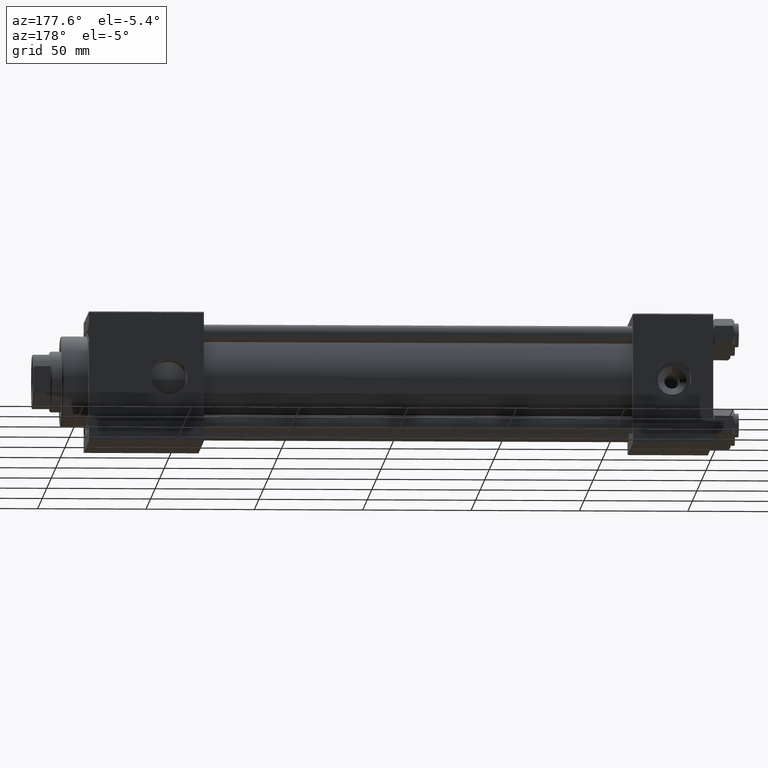
[diagram: clean part render]
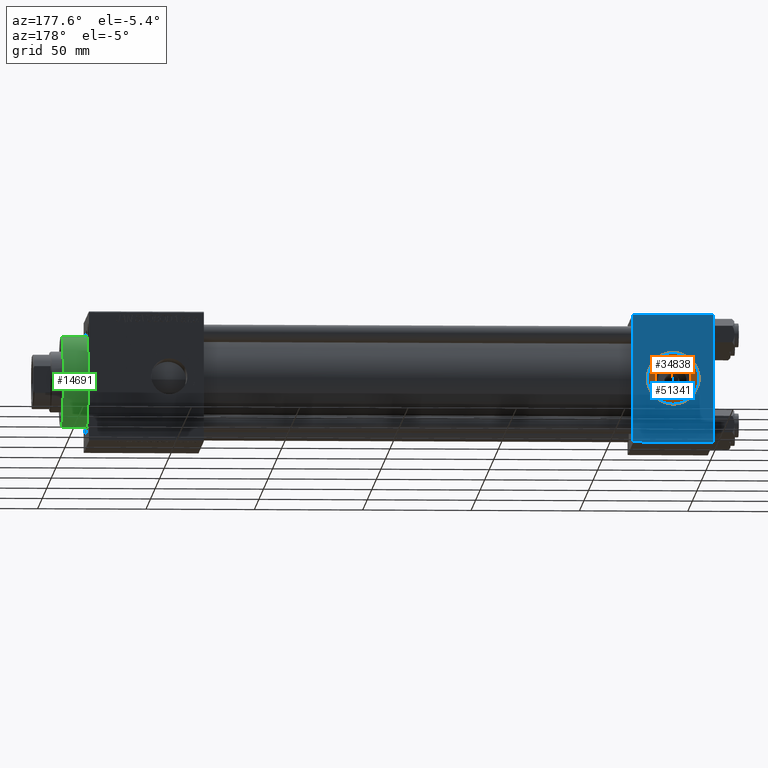
[diagram: same view with three faces highlighted in distinct colors, each labeled with its STEP entity id]
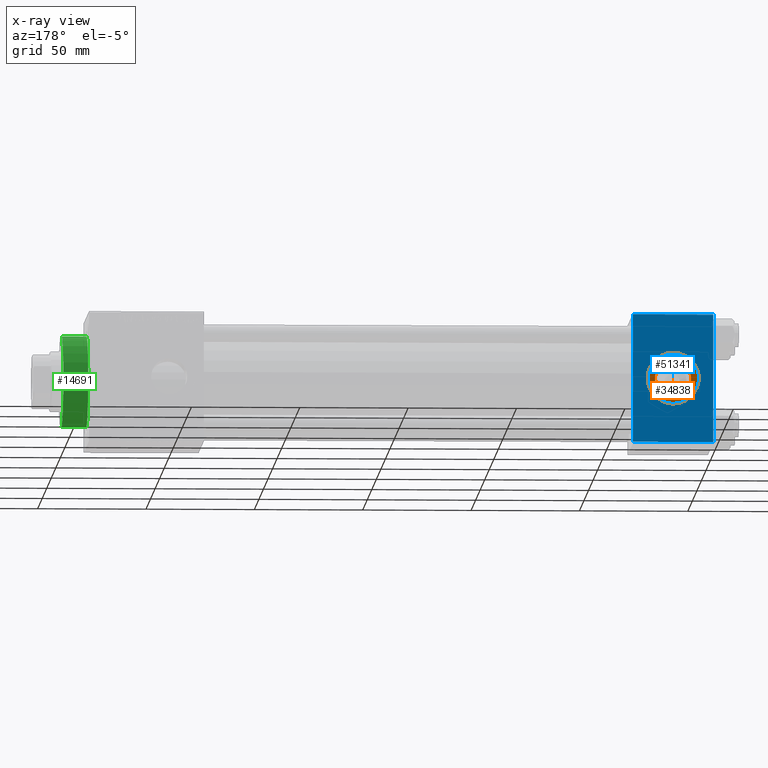
[diagram: x-ray of the same camera — body ghosted, the three highlighted faces saturated]
A machine part, auxiliary view with three faces highlighted in distinct colors.
The next image is the same camera in x-ray (body ghosted, the three faces saturated) — at least one of them is partly hidden behind the body in this view.
Their STEP definitions:

[orange] entity #34838 — the highlighted planar face has unit normal (0, 1, 0).
#20 = AXIS2_PLACEMENT_3D ( 'NONE', #6759, #39115, #2506 ) ;
#747 = CARTESIAN_POINT ( 'NONE',  ( 18.50000000000000000, 29.79999999999999361, 8.330000000000001847 ) ) ;
#778 = CARTESIAN_POINT ( 'NONE',  ( 18.50000000000000000, 29.79999999999999361, 12.00000000000000178 ) ) ;
#2506 = DIRECTION ( 'NONE',  ( 0.000000000000000000, -0.000000000000000000, 1.000000000000000000 ) ) ;
#2684 = EDGE_CURVE ( 'NONE', #36450, #14201, #18197, .T. ) ;
#2708 = DIRECTION ( 'NONE',  ( 0.000000000000000000, 0.000000000000000000, 1.000000000000000000 ) ) ;
#3665 = DIRECTION ( 'NONE',  ( 0.000000000000000000, 1.000000000000000000, 0.000000000000000000 ) ) ;
#3886 = ORIENTED_EDGE ( 'NONE', *, *, #4318, .T. ) ;
#3985 = CARTESIAN_POINT ( 'NONE',  ( 18.50000000000000000, 29.79999999999999361, 0.000000000000000000 ) ) ;
#4318 = EDGE_CURVE ( 'NONE', #14201, #36450, #14882, .T. ) ;
#4342 = DIRECTION ( 'NONE',  ( 0.000000000000000000, 1.000000000000000000, 0.000000000000000000 ) ) ;
#5868 = ORIENTED_EDGE ( 'NONE', *, *, #14621, .F. ) ;
#6759 = CARTESIAN_POINT ( 'NONE',  ( 18.50000000000000000, 29.79999999999999361, 0.000000000000000000 ) ) ;
#7690 = DIRECTION ( 'NONE',  ( 0.000000000000000000, 1.000000000000000000, 0.000000000000000000 ) ) ;
#12572 = DIRECTION ( 'NONE',  ( 0.000000000000000000, 0.000000000000000000, 1.000000000000000000 ) ) ;
#12705 = ORIENTED_EDGE ( 'NONE', *, *, #28606, .F. ) ;
#14201 = VERTEX_POINT ( 'NONE', #21910 ) ;
#14459 = FACE_OUTER_BOUND ( 'NONE', #21590, .T. ) ;
#14621 = EDGE_CURVE ( 'NONE', #18817, #18616, #50287, .T. ) ;
#14882 = CIRCLE ( 'NONE', #44512, 12.00000000000000178 ) ;
#16270 = CARTESIAN_POINT ( 'NONE',  ( 18.50000000000000000, 29.79999999999999361, -8.330000000000001847 ) ) ;
#18197 = CIRCLE ( 'NONE', #30054, 12.00000000000000178 ) ;
#18381 = DIRECTION ( 'NONE',  ( 0.000000000000000000, 1.000000000000000000, 0.000000000000000000 ) ) ;
#18616 = VERTEX_POINT ( 'NONE', #16270 ) ;
#18817 = VERTEX_POINT ( 'NONE', #747 ) ;
#19271 = CIRCLE ( 'NONE', #29447, 8.330000000000001847 ) ;
#19616 = DIRECTION ( 'NONE',  ( 0.000000000000000000, 0.000000000000000000, 1.000000000000000000 ) ) ;
#20111 = CARTESIAN_POINT ( 'NONE',  ( 18.50000000000000000, 29.79999999999999361, 0.000000000000000000 ) ) ;
#21590 = EDGE_LOOP ( 'NONE', ( #46154, #3886 ) ) ;
#21910 = CARTESIAN_POINT ( 'NONE',  ( 18.50000000000000000, 29.79999999999999361, -12.00000000000000178 ) ) ;
#23131 = AXIS2_PLACEMENT_3D ( 'NONE', #3985, #7690, #19616 ) ;
#26896 = PLANE ( 'NONE',  #20 ) ;
#28606 = EDGE_CURVE ( 'NONE', #18616, #18817, #19271, .T. ) ;
#29447 = AXIS2_PLACEMENT_3D ( 'NONE', #51015, #18381, #2708 ) ;
#30054 = AXIS2_PLACEMENT_3D ( 'NONE', #20111, #3665, #32312 ) ;
#30249 = EDGE_LOOP ( 'NONE', ( #5868, #12705 ) ) ;
#32312 = DIRECTION ( 'NONE',  ( 0.000000000000000000, 0.000000000000000000, 1.000000000000000000 ) ) ;
#34838 = ADVANCED_FACE ( 'NONE', ( #50815, #14459 ), #26896, .T. ) ;
#36450 = VERTEX_POINT ( 'NONE', #778 ) ;
#39115 = DIRECTION ( 'NONE',  ( 0.000000000000000000, 1.000000000000000000, 0.000000000000000000 ) ) ;
#40673 = CARTESIAN_POINT ( 'NONE',  ( 18.50000000000000000, 29.79999999999999361, 0.000000000000000000 ) ) ;
#44512 = AXIS2_PLACEMENT_3D ( 'NONE', #40673, #4342, #12572 ) ;
#46154 = ORIENTED_EDGE ( 'NONE', *, *, #2684, .T. ) ;
#50287 = CIRCLE ( 'NONE', #23131, 8.330000000000001847 ) ;
#50815 = FACE_BOUND ( 'NONE', #30249, .T. ) ;
#51015 = CARTESIAN_POINT ( 'NONE',  ( 18.50000000000000000, 29.79999999999999361, 0.000000000000000000 ) ) ;

[blue] entity #51341 — the highlighted planar face has unit normal (0, 1, 0).
#449 = DIRECTION ( 'NONE',  ( 0.000000000000000000, 1.000000000000000000, 0.000000000000000000 ) ) ;
#3152 = ORIENTED_EDGE ( 'NONE', *, *, #27745, .T. ) ;
#3546 = DIRECTION ( 'NONE',  ( 0.000000000000000000, 0.000000000000000000, 1.000000000000000000 ) ) ;
#3567 = VECTOR ( 'NONE', #40290, 1000.000000000000000 ) ;
#4298 = CARTESIAN_POINT ( 'NONE',  ( 37.00000000000000000, 29.99999999999999289, 30.00000000000000000 ) ) ;
#4763 = LINE ( 'NONE', #40814, #8246 ) ;
#5018 = LINE ( 'NONE', #45587, #52324 ) ;
#6016 = VERTEX_POINT ( 'NONE', #17150 ) ;
#6135 = AXIS2_PLACEMENT_3D ( 'NONE', #40778, #449, #8685 ) ;
#7011 = CARTESIAN_POINT ( 'NONE',  ( 18.50000000000000000, 29.99999999999999289, 0.000000000000000000 ) ) ;
#7022 = EDGE_CURVE ( 'NONE', #25283, #47919, #20542, .T. ) ;
#8080 = EDGE_CURVE ( 'NONE', #19786, #6016, #29009, .T. ) ;
#8246 = VECTOR ( 'NONE', #49052, 1000.000000000000000 ) ;
#8685 = DIRECTION ( 'NONE',  ( 0.000000000000000000, 0.000000000000000000, 1.000000000000000000 ) ) ;
#9585 = PLANE ( 'NONE',  #47878 ) ;
#11275 = CARTESIAN_POINT ( 'NONE',  ( 37.00000000000000000, 29.99999999999999289, -29.50000000000000000 ) ) ;
#11908 = LINE ( 'NONE', #28070, #3567 ) ;
#12030 = DIRECTION ( 'NONE',  ( 0.000000000000000000, 1.000000000000000000, 0.000000000000000000 ) ) ;
#12656 = EDGE_CURVE ( 'NONE', #29644, #44189, #11908, .T. ) ;
#16959 = CIRCLE ( 'NONE', #19460, 12.00000000000000178 ) ;
#17150 = CARTESIAN_POINT ( 'NONE',  ( 18.50000000000000000, 29.99999999999999289, -12.00000000000000178 ) ) ;
#19081 = ORIENTED_EDGE ( 'NONE', *, *, #27889, .T. ) ;
#19460 = AXIS2_PLACEMENT_3D ( 'NONE', #7011, #12030, #3546 ) ;
#19786 = VERTEX_POINT ( 'NONE', #21764 ) ;
#20409 = ORIENTED_EDGE ( 'NONE', *, *, #7022, .F. ) ;
#20472 = DIRECTION ( 'NONE',  ( 0.000000000000000000, -0.000000000000000000, 1.000000000000000000 ) ) ;
#20542 = LINE ( 'NONE', #31954, #23534 ) ;
#21764 = CARTESIAN_POINT ( 'NONE',  ( 18.50000000000000000, 29.99999999999999289, 12.00000000000000178 ) ) ;
#22620 = CARTESIAN_POINT ( 'NONE',  ( 0.000000000000000000, 29.99999999999999289, -29.50000000000000000 ) ) ;
#22877 = CARTESIAN_POINT ( 'NONE',  ( 0.000000000000000000, 29.99999999999999289, 29.50000000000000000 ) ) ;
#23534 = VECTOR ( 'NONE', #27697, 1000.000000000000000 ) ;
#25242 = CARTESIAN_POINT ( 'NONE',  ( 37.00000000000000000, 29.99999999999999289, 29.50000000000000000 ) ) ;
#25283 = VERTEX_POINT ( 'NONE', #22877 ) ;
#26876 = EDGE_LOOP ( 'NONE', ( #47989, #38399 ) ) ;
#27697 = DIRECTION ( 'NONE',  ( 0.000000000000000000, 0.000000000000000000, -1.000000000000000000 ) ) ;
#27745 = EDGE_CURVE ( 'NONE', #44189, #47919, #4763, .T. ) ;
#27889 = EDGE_CURVE ( 'NONE', #25283, #29644, #5018, .T. ) ;
#28070 = CARTESIAN_POINT ( 'NONE',  ( 37.00000000000000000, 29.99999999999999289, 30.00000000000000000 ) ) ;
#29009 = CIRCLE ( 'NONE', #6135, 12.00000000000000178 ) ;
#29644 = VERTEX_POINT ( 'NONE', #25242 ) ;
#29741 = FACE_BOUND ( 'NONE', #26876, .T. ) ;
#31954 = CARTESIAN_POINT ( 'NONE',  ( 0.000000000000000000, 29.99999999999999289, 30.00000000000000000 ) ) ;
#33326 = EDGE_CURVE ( 'NONE', #6016, #19786, #16959, .T. ) ;
#38399 = ORIENTED_EDGE ( 'NONE', *, *, #33326, .F. ) ;
#39040 = EDGE_LOOP ( 'NONE', ( #49157, #3152, #20409, #19081 ) ) ;
#40290 = DIRECTION ( 'NONE',  ( 0.000000000000000000, 0.000000000000000000, -1.000000000000000000 ) ) ;
#40636 = FACE_OUTER_BOUND ( 'NONE', #39040, .T. ) ;
#40778 = CARTESIAN_POINT ( 'NONE',  ( 18.50000000000000000, 29.99999999999999289, 0.000000000000000000 ) ) ;
#40814 = CARTESIAN_POINT ( 'NONE',  ( 37.00000000000000000, 29.99999999999999289, -29.50000000000000000 ) ) ;
#44189 = VERTEX_POINT ( 'NONE', #11275 ) ;
#45146 = DIRECTION ( 'NONE',  ( -0.000000000000000000, 1.000000000000000000, 0.000000000000000000 ) ) ;
#45587 = CARTESIAN_POINT ( 'NONE',  ( 37.00000000000000000, 29.99999999999999289, 29.50000000000000000 ) ) ;
#46377 = DIRECTION ( 'NONE',  ( 1.000000000000000000, 0.000000000000000000, 0.000000000000000000 ) ) ;
#47878 = AXIS2_PLACEMENT_3D ( 'NONE', #4298, #45146, #20472 ) ;
#47919 = VERTEX_POINT ( 'NONE', #22620 ) ;
#47989 = ORIENTED_EDGE ( 'NONE', *, *, #8080, .F. ) ;
#49052 = DIRECTION ( 'NONE',  ( -1.000000000000000000, 0.000000000000000000, 0.000000000000000000 ) ) ;
#49157 = ORIENTED_EDGE ( 'NONE', *, *, #12656, .T. ) ;
#51341 = ADVANCED_FACE ( 'NONE', ( #29741, #40636 ), #9585, .T. ) ;
#52324 = VECTOR ( 'NONE', #46377, 1000.000000000000000 ) ;

[green] entity #14691 — the highlighted cylindrical surface (partial cylindrical patch) has radius 21 mm, axis along (-1, -0, -0).
#755 = VERTEX_POINT ( 'NONE', #45361 ) ;
#784 = FACE_OUTER_BOUND ( 'NONE', #46365, .T. ) ;
#4711 = EDGE_CURVE ( 'NONE', #7199, #22704, #43985, .T. ) ;
#6194 = CARTESIAN_POINT ( 'NONE',  ( -20.96385542168674831, 1.231570484631392626, 28.69999999999999929 ) ) ;
#7199 = VERTEX_POINT ( 'NONE', #6194 ) ;
#7236 = CARTESIAN_POINT ( 'NONE',  ( 0.000000000000000000, 0.000000000000000000, 40.19999999999998863 ) ) ;
#8956 = ORIENTED_EDGE ( 'NONE', *, *, #17005, .T. ) ;
#11336 = CIRCLE ( 'NONE', #28248, 21.00000000000000000 ) ;
#12998 = DIRECTION ( 'NONE',  ( -1.000000000000000000, 0.000000000000000000, 0.000000000000000000 ) ) ;
#13520 = CYLINDRICAL_SURFACE ( 'NONE', #24863, 21.00000000000000000 ) ;
#14691 = ADVANCED_FACE ( 'NONE', ( #784 ), #13520, .T. ) ;
#15593 = EDGE_CURVE ( 'NONE', #22704, #26581, #11336, .T. ) ;
#16453 = DIRECTION ( 'NONE',  ( 1.000000000000000000, 0.000000000000000000, 0.000000000000000000 ) ) ;
#17005 = EDGE_CURVE ( 'NONE', #755, #7199, #37638, .T. ) ;
#18433 = EDGE_CURVE ( 'NONE', #26581, #755, #26874, .T. ) ;
#20565 = ORIENTED_EDGE ( 'NONE', *, *, #4711, .T. ) ;
#22704 = VERTEX_POINT ( 'NONE', #49588 ) ;
#24863 = AXIS2_PLACEMENT_3D ( 'NONE', #49344, #28635, #12998 ) ;
#26581 = VERTEX_POINT ( 'NONE', #48565 ) ;
#26874 = LINE ( 'NONE', #46795, #34329 ) ;
#28248 = AXIS2_PLACEMENT_3D ( 'NONE', #7236, #38826, #35874 ) ;
#28635 = DIRECTION ( 'NONE',  ( -0.000000000000000000, -0.000000000000000000, -1.000000000000000000 ) ) ;
#29072 = ORIENTED_EDGE ( 'NONE', *, *, #18433, .T. ) ;
#29174 = CARTESIAN_POINT ( 'NONE',  ( 0.000000000000000000, 0.000000000000000000, 28.69999999999999929 ) ) ;
#32673 = VECTOR ( 'NONE', #47985, 1000.000000000000000 ) ;
#34329 = VECTOR ( 'NONE', #34852, 1000.000000000000000 ) ;
#34852 = DIRECTION ( 'NONE',  ( 0.000000000000000000, 0.000000000000000000, -1.000000000000000000 ) ) ;
#35874 = DIRECTION ( 'NONE',  ( 1.000000000000000000, 0.000000000000000000, 0.000000000000000000 ) ) ;
#36802 = AXIS2_PLACEMENT_3D ( 'NONE', #29174, #40582, #16453 ) ;
#37638 = CIRCLE ( 'NONE', #36802, 21.00000000000000000 ) ;
#38826 = DIRECTION ( 'NONE',  ( 0.000000000000000000, 0.000000000000000000, -1.000000000000000000 ) ) ;
#40582 = DIRECTION ( 'NONE',  ( 0.000000000000000000, 0.000000000000000000, 1.000000000000000000 ) ) ;
#43985 = LINE ( 'NONE', #44249, #32673 ) ;
#44249 = CARTESIAN_POINT ( 'NONE',  ( -20.96385542168674831, 1.231570484631384410, 32.20000000000000284 ) ) ;
#45361 = CARTESIAN_POINT ( 'NONE',  ( 20.96385542168674831, 1.231570484631385076, 28.69999999999999929 ) ) ;
#46241 = ORIENTED_EDGE ( 'NONE', *, *, #15593, .T. ) ;
#46365 = EDGE_LOOP ( 'NONE', ( #8956, #20565, #46241, #29072 ) ) ;
#46795 = CARTESIAN_POINT ( 'NONE',  ( 20.96385542168674831, 1.231570484631384410, 32.20000000000000284 ) ) ;
#47985 = DIRECTION ( 'NONE',  ( -0.000000000000000000, -0.000000000000000000, 1.000000000000000000 ) ) ;
#48565 = CARTESIAN_POINT ( 'NONE',  ( 20.96385542168674831, 1.231570484631384188, 40.19999999999998863 ) ) ;
#49344 = CARTESIAN_POINT ( 'NONE',  ( 0.000000000000000000, 0.000000000000000000, 40.70000000000000284 ) ) ;
#49588 = CARTESIAN_POINT ( 'NONE',  ( -20.96385542168674831, 1.231570484631384410, 40.19999999999998863 ) ) ;